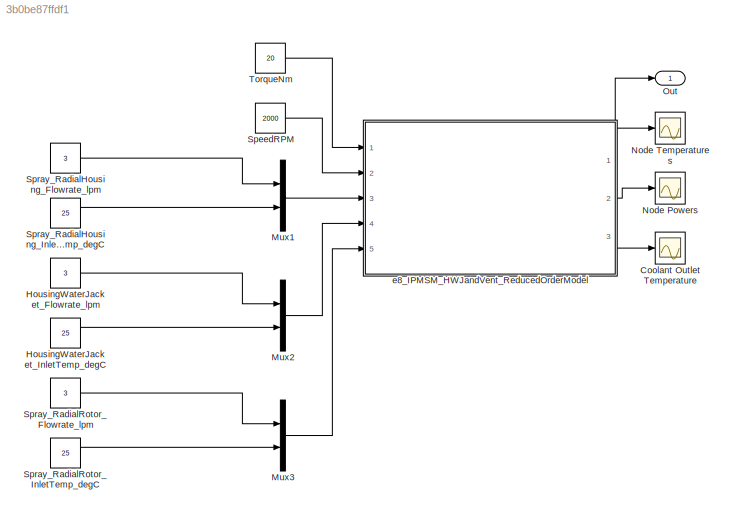
MODEL slx_3b0be87ffdf1
KIND model
CONFIG AbsTol = 1e-3
CONFIG EnableMultiTasking = off
CONFIG FixedStep = auto
CONFIG MaxStep = auto
CONFIG MinStep = auto
CONFIG RelTol = 1e-3
CONFIG SampleTimeConstraint = Unconstrained
CONFIG SolverName = VariableStepAuto
CONFIG StartTime = 0.0
CONFIG StopTime = 1000
WORKSPACE source: mxarray member
WORKSPACE AdjacencyMat = [0 0 0 0 0 0 0 0 0 0 0 0 ... (12996 elements, 114x114)]
WORKSPACE Banding_Loss_Mat = [0 0 0 0 0 0 0 0 0 0 0 0 ... (2340 elements, 39x60)]
WORKSPACE CapMat = [1e+20 2196.70091586 387.653102799 193.8265514 1962.34710525 387.653102799 193.8265514 1962.34710525 1266.59353814 268.053957132 416.539515956 175.715078 ... (114 elements, 114x1)]
WORKSPACE CoolantArrayIdxs = [21 29 78 100 30 31 32 33]
WORKSPACE Friction_Loss_Mat = [0 0 0 0 0 0 0 0 0 0 0 0 ... (2340 elements, 39x60)]
WORKSPACE InletCoolIdxs = [30 29 30 31 29 31 32 29 32 33 29 33]
WORKSPACE Iron_Loss_Rotor_Back_Iron_Mat = [0.0117705351991 0.0200087653806 0.0246811430764 0.0256578010281 0.0240025552689 0.0207013457731 0.0167627779958 0.013305715839 0.0115602539828 0.0121149481083 0.0143511671725 0.0171856755847 ... (2340 elements, 39x60)]
WORKSPACE Iron_Loss_Rotor_Pole_Mat = [1.45649756865 1.45241481649 1.42884898554 1.39022048903 1.34148134724 1.28634015611 1.22776297278 1.16827194649 1.11002512364 1.05393003616 0.999091137463 0.943664155592 ... (2340 elements, 39x60)]
WORKSPACE Iron_Loss_Rotor_Tooth_Mat = [0 0 0 0 0 0 0 0 0 0 0 0 ... (2340 elements, 39x60)]
WORKSPACE Iron_Loss_Stator_Back_Iron_Mat = [38.5419456951 37.7562377622 36.7626331345 35.6659256425 34.5041164064 33.3097183676 32.1148301022 30.9550268851 29.8690226279 28.862614511 27.8706329494 26.7877765024 ... (2340 elements, 39x60)]
WORKSPACE Iron_Loss_Stator_Tooth_Mat = [42.0610884508 41.0367236596 40.1636589805 39.4141834911 38.6901612332 37.9457147976 37.1698474109 36.3762859147 35.5917582202 34.8149830437 33.9858111542 33.0265171037 ... (2340 elements, 39x60)]
WORKSPACE LossDistrForEachType = [0 0 0 0 0 0 0 0 0 0 0 0 ... (2736 elements, 24x114)]
WORKSPACE Magnet_Loss_Mat = [0.0995193918038 0.0927324879203 0.0867464499603 0.0817901209144 0.0773904805464 0.0731587227427 0.068708638331 0.0635818407139 0.057217354686 0.0494585613633 0.0409403305493 0.0325683424692 ... (2340 elements, 39x60)]
WORKSPACE OutletCoolIdxs = [30 100 30 31 100 31 32 100 32 33 100 33]
WORKSPACE RotorCopperTempCoefResistivity = 0.00393
WORKSPACE Rotor_Cage_Loss_Mat = [0 0 0 0 0 0 0 0 0 0 0 0 ... (2340 elements, 39x60)]
WORKSPACE ShaftTorqueVec = [-286.936099977 -271.951133863 -256.966167748 -241.981201634 -226.99623552 -212.011269406 -197.026303292 -182.041337178 -167.056371063 -152.071404949 -137.086438835 -122.101472721 ... (39 elements, 1x39)]
WORKSPACE Sleeve_Loss_Mat = [0 0 0 0 0 0 0 0 0 0 0 0 ... (2340 elements, 39x60)]
WORKSPACE SpeedVec = [500 661.016949153 822.033898305 983.050847458 1144.06779661 1305.08474576 1466.10169492 1627.11864407 1788.13559322 1949.15254237 2110.16949153 2271.18644068 ... (60 elements, 1x60)]
WORKSPACE StateSpaceND: object (value not decoded)
WORKSPACE StatorCopperTempCoefResistivity = 0.00393
WORKSPACE Stator_Copper_Loss_AC_Mat = [0 0 0 0 0 0 0 0 0 0 0 0 ... (2340 elements, 39x60)]
WORKSPACE Stator_Copper_Loss_Mat = [3925.33912093 3500.33132705 3080.91358293 2704.55804144 2364.73307434 2056.62848353 1776.61435032 1521.89015388 1290.25886694 1079.99319182 889.737399072 718.403752767 ... (2340 elements, 39x60)]
WORKSPACE Stray_Load_Loss_Mat = [0 0 0 0 0 0 0 0 0 0 0 0 ... (2340 elements, 39x60)]
WORKSPACE Stray_Loss_Stator_Iron_Proportion = 0.95
WORKSPACE TnodesInit = [25 25 25 25 25 25 25 25 25 25 25 25 ... (114 elements, 114x1)]
WORKSPACE TrefRotor = 20
WORKSPACE TrefStator = 20
WORKSPACE Windage_Loss_Mat = [0 0 0 0 0 0 0 0 0 0 0 0 ... (2340 elements, 39x60)]
BLOCK [Scope] Coolant Outlet Temperature
  Floating = off
  NumInputPorts = 1
  Ports = [1]
BLOCK [Constant] HousingWaterJacket_Flowrate_lpm
  Value = 3
BLOCK [Constant] HousingWaterJacket_InletTemp_degC
  Value = 25
BLOCK [Mux] Mux1
  DisplayOption = bar
  Inputs = 2
  Ports = [2, 1]
BLOCK [Mux] Mux2
  DisplayOption = bar
  Inputs = 2
  Ports = [2, 1]
BLOCK [Mux] Mux3
  DisplayOption = bar
  Inputs = 2
  Ports = [2, 1]
BLOCK [Scope] Node Powers
  Floating = off
  NumInputPorts = 1
  Ports = [1]
BLOCK [Scope] Node Temperatures
  Floating = off
  NumInputPorts = 1
  Ports = [1]
BLOCK [Outport] Out
BLOCK [Constant] SpeedRPM
  Value = 2000
BLOCK [Constant] Spray_RadialHousing_Flowrate_lpm
  Value = 3
BLOCK [Constant] Spray_RadialHousing_InletTemp_degC
  Value = 25
BLOCK [Constant] Spray_RadialRotor_Flowrate_lpm
  Value = 3
BLOCK [Constant] Spray_RadialRotor_InletTemp_degC
  Value = 25
BLOCK [Constant] TorqueNm
  Value = 20
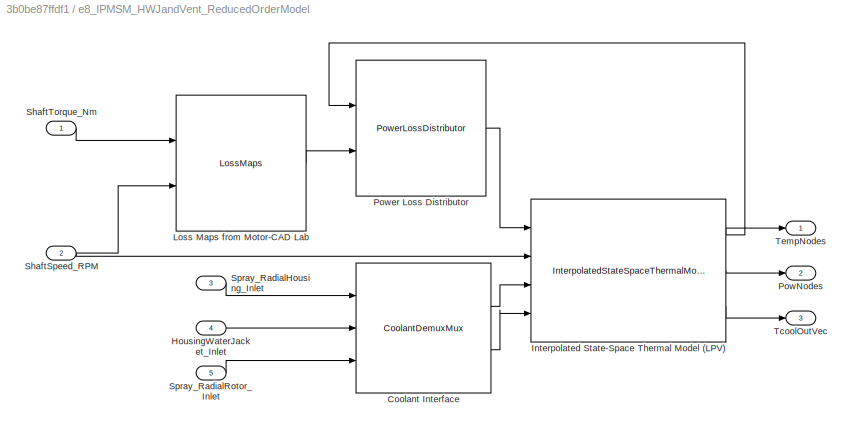
BLOCK [SubSystem] e8_IPMSM_HWJandVent_ReducedOrderModel
  Ports = [5, 3]
  RequestExecContextInheritance = off
BLOCK [Reference] e8_IPMSM_HWJandVent_ReducedOrderModel/Coolant Interface  REF=mcadROM_lib/CoolantDemuxMux
  Ports = [3, 2]
  SourceBlock = mcadROM_lib/CoolantDemuxMux
BLOCK [Inport] e8_IPMSM_HWJandVent_ReducedOrderModel/HousingWaterJacket_Inlet
  Port = 4
BLOCK [Reference] e8_IPMSM_HWJandVent_ReducedOrderModel/Interpolated State-Space Thermal Model (LPV)  REF=mcadROM_lib/InterpolatedStateSpaceThermalModel (LPV)
  Ports = [4, 3]
  SourceBlock = mcadROM_lib/InterpolatedStateSpaceThermalModel (LPV)
BLOCK [Reference] e8_IPMSM_HWJandVent_ReducedOrderModel/Loss Maps from Motor-CAD Lab  REF=mcadROM_lib/LossMaps
  Ports = [2, 1]
  SourceBlock = mcadROM_lib/LossMaps
BLOCK [Outport] e8_IPMSM_HWJandVent_ReducedOrderModel/PowNodes
  Port = 2
BLOCK [Reference] e8_IPMSM_HWJandVent_ReducedOrderModel/Power Loss Distributor  REF=mcadROM_lib/PowerLossDistributor
  Ports = [2, 1]
  SourceBlock = mcadROM_lib/PowerLossDistributor
BLOCK [Inport] e8_IPMSM_HWJandVent_ReducedOrderModel/ShaftSpeed_RPM
  Port = 2
BLOCK [Inport] e8_IPMSM_HWJandVent_ReducedOrderModel/ShaftTorque_Nm
BLOCK [Inport] e8_IPMSM_HWJandVent_ReducedOrderModel/Spray_RadialHousing_Inlet
  Port = 3
BLOCK [Inport] e8_IPMSM_HWJandVent_ReducedOrderModel/Spray_RadialRotor_Inlet
  Port = 5
BLOCK [Outport] e8_IPMSM_HWJandVent_ReducedOrderModel/TcoolOutVec
  Port = 3
BLOCK [Outport] e8_IPMSM_HWJandVent_ReducedOrderModel/TempNodes
LINE HousingWaterJacket_Flowrate_lpm:1 -> Mux2:1
LINE HousingWaterJacket_InletTemp_degC:1 -> Mux2:2
LINE Mux1:1 -> e8_IPMSM_HWJandVent_ReducedOrderModel:3
LINE Mux2:1 -> e8_IPMSM_HWJandVent_ReducedOrderModel:4
LINE Mux3:1 -> e8_IPMSM_HWJandVent_ReducedOrderModel:5
LINE SpeedRPM:1 -> e8_IPMSM_HWJandVent_ReducedOrderModel:2
LINE Spray_RadialHousing_Flowrate_lpm:1 -> Mux1:1
LINE Spray_RadialHousing_InletTemp_degC:1 -> Mux1:2
LINE Spray_RadialRotor_Flowrate_lpm:1 -> Mux3:1
LINE Spray_RadialRotor_InletTemp_degC:1 -> Mux3:2
LINE TorqueNm:1 -> e8_IPMSM_HWJandVent_ReducedOrderModel:1
LINE e8_IPMSM_HWJandVent_ReducedOrderModel/Coolant Interface:1 -> e8_IPMSM_HWJandVent_ReducedOrderModel/Interpolated State-Space Thermal Model (LPV):3
LINE e8_IPMSM_HWJandVent_ReducedOrderModel/Coolant Interface:2 -> e8_IPMSM_HWJandVent_ReducedOrderModel/Interpolated State-Space Thermal Model (LPV):4
LINE e8_IPMSM_HWJandVent_ReducedOrderModel/HousingWaterJacket_Inlet:1 -> e8_IPMSM_HWJandVent_ReducedOrderModel/Coolant Interface:2
NET e8_IPMSM_HWJandVent_ReducedOrderModel/Interpolated State-Space Thermal Model (LPV):1 -> e8_IPMSM_HWJandVent_ReducedOrderModel/Power Loss Distributor:1, e8_IPMSM_HWJandVent_ReducedOrderModel/TempNodes:1
LINE e8_IPMSM_HWJandVent_ReducedOrderModel/Interpolated State-Space Thermal Model (LPV):2 -> e8_IPMSM_HWJandVent_ReducedOrderModel/PowNodes:1
LINE e8_IPMSM_HWJandVent_ReducedOrderModel/Interpolated State-Space Thermal Model (LPV):3 -> e8_IPMSM_HWJandVent_ReducedOrderModel/TcoolOutVec:1
LINE e8_IPMSM_HWJandVent_ReducedOrderModel/Loss Maps from Motor-CAD Lab:1 -> e8_IPMSM_HWJandVent_ReducedOrderModel/Power Loss Distributor:2
LINE e8_IPMSM_HWJandVent_ReducedOrderModel/Power Loss Distributor:1 -> e8_IPMSM_HWJandVent_ReducedOrderModel/Interpolated State-Space Thermal Model (LPV):1
NET e8_IPMSM_HWJandVent_ReducedOrderModel/ShaftSpeed_RPM:1 -> e8_IPMSM_HWJandVent_ReducedOrderModel/Interpolated State-Space Thermal Model (LPV):2, e8_IPMSM_HWJandVent_ReducedOrderModel/Loss Maps from Motor-CAD Lab:2
LINE e8_IPMSM_HWJandVent_ReducedOrderModel/ShaftTorque_Nm:1 -> e8_IPMSM_HWJandVent_ReducedOrderModel/Loss Maps from Motor-CAD Lab:1
LINE e8_IPMSM_HWJandVent_ReducedOrderModel/Spray_RadialHousing_Inlet:1 -> e8_IPMSM_HWJandVent_ReducedOrderModel/Coolant Interface:1
LINE e8_IPMSM_HWJandVent_ReducedOrderModel/Spray_RadialRotor_Inlet:1 -> e8_IPMSM_HWJandVent_ReducedOrderModel/Coolant Interface:3
NET e8_IPMSM_HWJandVent_ReducedOrderModel:1 -> Node Temperatures:1, Out:1
LINE e8_IPMSM_HWJandVent_ReducedOrderModel:2 -> Node Powers:1
LINE e8_IPMSM_HWJandVent_ReducedOrderModel:3 -> Coolant Outlet Temperature:1
note: NET lines group one-source signal fan-out (src -> all destinations, sorted); 1:1 wires keep LINE
